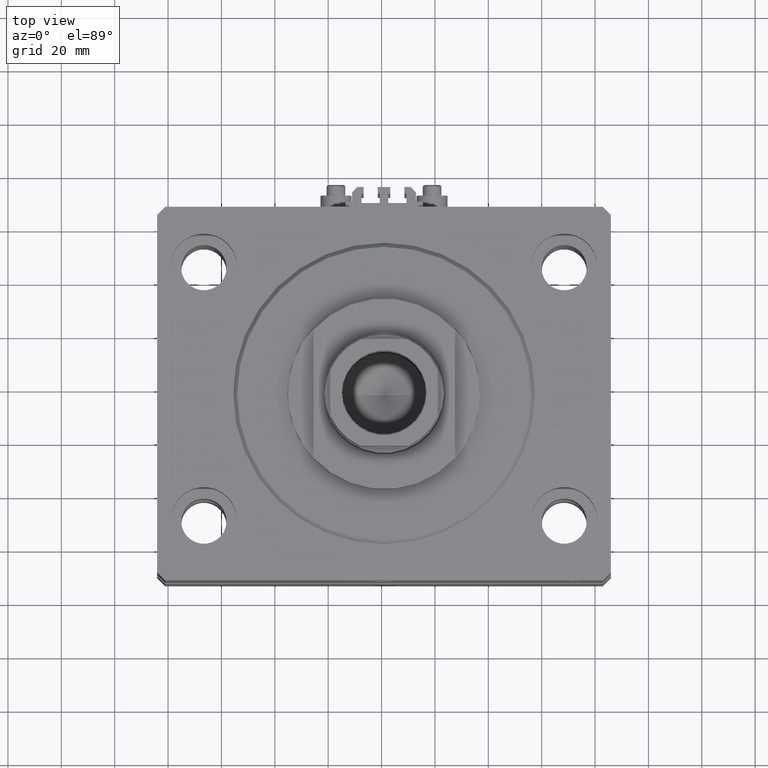
[diagram: clean part render]
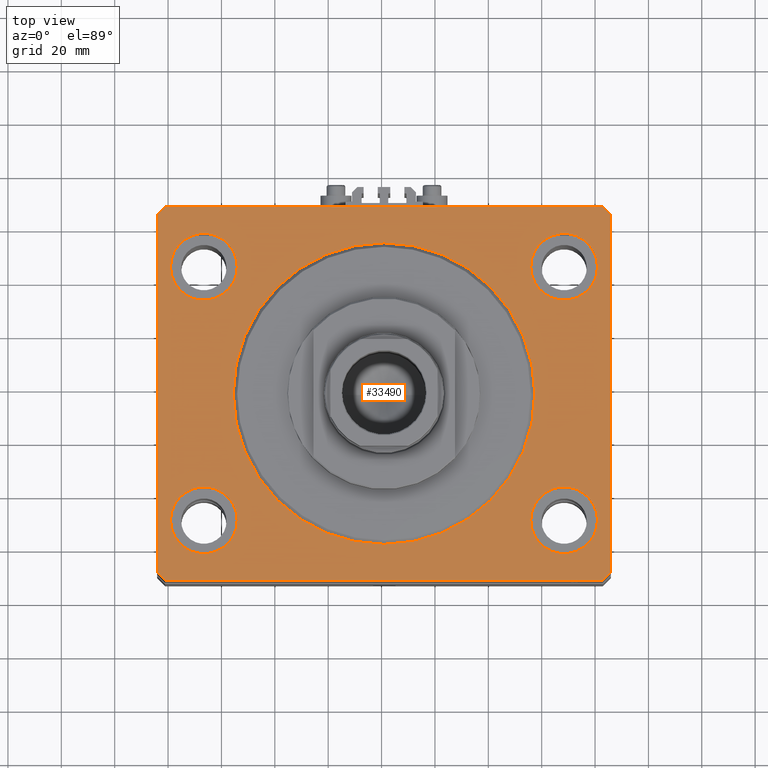
[diagram: same view with one face highlighted and labeled with its STEP entity id]
A machine part, top view. The second image highlights one B-rep face of the part: STEP entity #33490.
In plain terms, the highlighted planar face has unit normal (0, 0, 1).
Its self-contained STEP definition (entity closure, byte-faithful):
#79 = DIRECTION ( 'NONE',  ( 1.000000000000000000, 0.000000000000000000, 0.000000000000000000 ) ) ;
#211 = DIRECTION ( 'NONE',  ( 0.7071067811865459074, 0.7071067811865491270, 0.000000000000000000 ) ) ;
#237 = DIRECTION ( 'NONE',  ( 0.000000000000000000, 0.000000000000000000, 1.000000000000000000 ) ) ;
#923 = AXIS2_PLACEMENT_3D ( 'NONE', #12590, #237, #27661 ) ;
#999 = AXIS2_PLACEMENT_3D ( 'NONE', #36956, #44637, #47872 ) ;
#1818 = DIRECTION ( 'NONE',  ( 1.000000000000000000, 0.000000000000000000, 0.000000000000000000 ) ) ;
#2548 = CIRCLE ( 'NONE', #999, 12.49999999999999645 ) ;
#2725 = CIRCLE ( 'NONE', #20113, 12.49999999999999645 ) ;
#2758 = CIRCLE ( 'NONE', #15418, 12.49999999999999645 ) ;
#2962 = CIRCLE ( 'NONE', #6104, 12.49999999999999645 ) ;
#3541 = ORIENTED_EDGE ( 'NONE', *, *, #45721, .T. ) ;
#3753 = LINE ( 'NONE', #11445, #40136 ) ;
#4842 = CARTESIAN_POINT ( 'NONE',  ( -55.00000000000000711, -47.50000000000000000, 0.000000000000000000 ) ) ;
#4941 = EDGE_CURVE ( 'NONE', #26742, #23318, #38807, .T. ) ;
#5343 = VECTOR ( 'NONE', #48174, 1000.000000000000000 ) ;
#5590 = ORIENTED_EDGE ( 'NONE', *, *, #6964, .F. ) ;
#5617 = CARTESIAN_POINT ( 'NONE',  ( 67.50000000000000000, 47.50000000000001421, 0.000000000000000000 ) ) ;
#6044 = CARTESIAN_POINT ( 'NONE',  ( -82.00000000000000000, 70.00000000000000000, 0.000000000000000000 ) ) ;
#6088 = DIRECTION ( 'NONE',  ( 3.935492064902608811E-15, 1.000000000000000000, 0.000000000000000000 ) ) ;
#6104 = AXIS2_PLACEMENT_3D ( 'NONE', #26152, #18747, #36525 ) ;
#6112 = CARTESIAN_POINT ( 'NONE',  ( 82.00000000000001421, -70.00000000000000000, 0.000000000000000000 ) ) ;
#6702 = EDGE_LOOP ( 'NONE', ( #48087, #46624 ) ) ;
#6726 = EDGE_CURVE ( 'NONE', #35325, #8647, #12072, .T. ) ;
#6964 = EDGE_CURVE ( 'NONE', #27202, #34143, #2548, .T. ) ;
#7031 = CARTESIAN_POINT ( 'NONE',  ( 56.50000000000000711, 0.000000000000000000, 0.000000000000000000 ) ) ;
#8515 = DIRECTION ( 'NONE',  ( 0.000000000000000000, 0.000000000000000000, 1.000000000000000000 ) ) ;
#8567 = DIRECTION ( 'NONE',  ( 1.000000000000000000, 0.000000000000000000, 0.000000000000000000 ) ) ;
#8647 = VERTEX_POINT ( 'NONE', #12804 ) ;
#8906 = VERTEX_POINT ( 'NONE', #7031 ) ;
#9307 = ORIENTED_EDGE ( 'NONE', *, *, #39899, .T. ) ;
#9598 = LINE ( 'NONE', #24673, #10862 ) ;
#9674 = VERTEX_POINT ( 'NONE', #12756 ) ;
#9766 = DIRECTION ( 'NONE',  ( -0.7071067811865474617, -0.7071067811865474617, 0.000000000000000000 ) ) ;
#9791 = ORIENTED_EDGE ( 'NONE', *, *, #21216, .T. ) ;
#10044 = ORIENTED_EDGE ( 'NONE', *, *, #22298, .F. ) ;
#10139 = CIRCLE ( 'NONE', #41766, 12.49999999999999645 ) ;
#10301 = CARTESIAN_POINT ( 'NONE',  ( 85.00000000000001421, -66.99999999999998579, 0.000000000000000000 ) ) ;
#10711 = DIRECTION ( 'NONE',  ( -0.7071067811865344721, 0.7071067811865606734, 0.000000000000000000 ) ) ;
#10830 = EDGE_CURVE ( 'NONE', #38622, #35098, #2725, .T. ) ;
#10862 = VECTOR ( 'NONE', #25902, 1000.000000000000000 ) ;
#10953 = DIRECTION ( 'NONE',  ( 0.000000000000000000, 0.000000000000000000, 1.000000000000000000 ) ) ;
#11445 = CARTESIAN_POINT ( 'NONE',  ( 85.00000000000055422, 66.99999999999997158, 0.000000000000000000 ) ) ;
#11641 = CARTESIAN_POINT ( 'NONE',  ( 82.00000000000059686, 70.00000000000002842, 0.000000000000000000 ) ) ;
#12072 = CIRCLE ( 'NONE', #36497, 12.49999999999999645 ) ;
#12313 = EDGE_CURVE ( 'NONE', #35098, #38622, #2758, .T. ) ;
#12480 = CIRCLE ( 'NONE', #20381, 12.49999999999999645 ) ;
#12590 = CARTESIAN_POINT ( 'NONE',  ( -67.50000000000000000, -47.50000000000000000, 0.000000000000000000 ) ) ;
#12756 = CARTESIAN_POINT ( 'NONE',  ( -82.00000000000001421, -70.00000000000000000, 0.000000000000000000 ) ) ;
#12804 = CARTESIAN_POINT ( 'NONE',  ( 80.00000000000000000, -47.50000000000000000, 0.000000000000000000 ) ) ;
#13208 = DIRECTION ( 'NONE',  ( 0.000000000000000000, 0.000000000000000000, 1.000000000000000000 ) ) ;
#13822 = ORIENTED_EDGE ( 'NONE', *, *, #31292, .T. ) ;
#14173 = EDGE_LOOP ( 'NONE', ( #30083, #46374 ) ) ;
#14435 = EDGE_LOOP ( 'NONE', ( #48910, #10044 ) ) ;
#14973 = CARTESIAN_POINT ( 'NONE',  ( -85.00000000000000000, 67.00000000000000000, 0.000000000000000000 ) ) ;
#15017 = CARTESIAN_POINT ( 'NONE',  ( 67.50000000000000000, -47.50000000000000000, 0.000000000000000000 ) ) ;
#15418 = AXIS2_PLACEMENT_3D ( 'NONE', #5617, #39010, #27404 ) ;
#15422 = CARTESIAN_POINT ( 'NONE',  ( 67.50000000000000000, 47.50000000000001421, 0.000000000000000000 ) ) ;
#16179 = FACE_BOUND ( 'NONE', #14173, .T. ) ;
#16239 = VERTEX_POINT ( 'NONE', #32284 ) ;
#16681 = VERTEX_POINT ( 'NONE', #44332 ) ;
#16913 = FACE_BOUND ( 'NONE', #22591, .T. ) ;
#17253 = CARTESIAN_POINT ( 'NONE',  ( -67.50000000000000000, -47.50000000000000000, 0.000000000000000000 ) ) ;
#17685 = LINE ( 'NONE', #25575, #19831 ) ;
#17861 = ORIENTED_EDGE ( 'NONE', *, *, #10830, .F. ) ;
#18089 = CARTESIAN_POINT ( 'NONE',  ( -85.00000000000001421, -67.00000000000000000, 0.000000000000000000 ) ) ;
#18210 = VERTEX_POINT ( 'NONE', #11641 ) ;
#18747 = DIRECTION ( 'NONE',  ( 0.000000000000000000, 0.000000000000000000, 1.000000000000000000 ) ) ;
#19275 = AXIS2_PLACEMENT_3D ( 'NONE', #19705, #26874, #8567 ) ;
#19705 = CARTESIAN_POINT ( 'NONE',  ( 0.000000000000000000, 0.000000000000000000, 0.000000000000000000 ) ) ;
#19831 = VECTOR ( 'NONE', #22115, 1000.000000000000000 ) ;
#20113 = AXIS2_PLACEMENT_3D ( 'NONE', #15422, #30510, #79 ) ;
#20381 = AXIS2_PLACEMENT_3D ( 'NONE', #17253, #32573, #43459 ) ;
#21216 = EDGE_CURVE ( 'NONE', #18210, #34786, #9598, .T. ) ;
#21242 = EDGE_CURVE ( 'NONE', #8647, #35325, #2962, .T. ) ;
#21302 = CIRCLE ( 'NONE', #48196, 56.50000000000000711 ) ;
#21643 = ORIENTED_EDGE ( 'NONE', *, *, #44537, .T. ) ;
#21696 = LINE ( 'NONE', #40487, #5343 ) ;
#22115 = DIRECTION ( 'NONE',  ( -1.035655806553317576E-16, -1.000000000000000000, 0.000000000000000000 ) ) ;
#22298 = EDGE_CURVE ( 'NONE', #23318, #26742, #12480, .T. ) ;
#22591 = EDGE_LOOP ( 'NONE', ( #17861, #27862 ) ) ;
#23318 = VERTEX_POINT ( 'NONE', #42927 ) ;
#23704 = CARTESIAN_POINT ( 'NONE',  ( -55.00000000000000711, 47.50000000000000000, 0.000000000000000000 ) ) ;
#23830 = CARTESIAN_POINT ( 'NONE',  ( 0.000000000000000000, 0.000000000000000000, 0.000000000000000000 ) ) ;
#23858 = EDGE_CURVE ( 'NONE', #26102, #18210, #3753, .T. ) ;
#23874 = EDGE_CURVE ( 'NONE', #34143, #27202, #10139, .T. ) ;
#23956 = CARTESIAN_POINT ( 'NONE',  ( -80.00000000000000000, 47.50000000000000000, 0.000000000000000000 ) ) ;
#23981 = VECTOR ( 'NONE', #211, 1000.000000000000000 ) ;
#24147 = CARTESIAN_POINT ( 'NONE',  ( 55.00000000000000711, -47.50000000000000000, 0.000000000000000000 ) ) ;
#24673 = CARTESIAN_POINT ( 'NONE',  ( 82.00000000000059686, 70.00000000000002842, 0.000000000000000000 ) ) ;
#24951 = EDGE_LOOP ( 'NONE', ( #9791, #13822, #9307, #21643, #39956, #35705, #3541, #32786 ) ) ;
#25575 = CARTESIAN_POINT ( 'NONE',  ( -85.00000000000000000, 67.00000000000000000, 0.000000000000000000 ) ) ;
#25902 = DIRECTION ( 'NONE',  ( -1.000000000000000000, -1.692413147294439807E-16, 0.000000000000000000 ) ) ;
#26102 = VERTEX_POINT ( 'NONE', #39813 ) ;
#26152 = CARTESIAN_POINT ( 'NONE',  ( 67.50000000000000000, -47.50000000000000000, 0.000000000000000000 ) ) ;
#26520 = CARTESIAN_POINT ( 'NONE',  ( -67.50000000000000000, 47.50000000000000000, 0.000000000000000000 ) ) ;
#26742 = VERTEX_POINT ( 'NONE', #4842 ) ;
#26874 = DIRECTION ( 'NONE',  ( 0.000000000000000000, 0.000000000000000000, 1.000000000000000000 ) ) ;
#26910 = LINE ( 'NONE', #30635, #23981 ) ;
#27202 = VERTEX_POINT ( 'NONE', #23704 ) ;
#27404 = DIRECTION ( 'NONE',  ( 1.000000000000000000, 0.000000000000000000, 0.000000000000000000 ) ) ;
#27549 = FACE_OUTER_BOUND ( 'NONE', #24951, .T. ) ;
#27661 = DIRECTION ( 'NONE',  ( 1.000000000000000000, 0.000000000000000000, 0.000000000000000000 ) ) ;
#27862 = ORIENTED_EDGE ( 'NONE', *, *, #12313, .F. ) ;
#28662 = CARTESIAN_POINT ( 'NONE',  ( 55.00000000000000711, 47.50000000000001421, 0.000000000000000000 ) ) ;
#29968 = EDGE_CURVE ( 'NONE', #9674, #37968, #21696, .T. ) ;
#30083 = ORIENTED_EDGE ( 'NONE', *, *, #21242, .F. ) ;
#30293 = VECTOR ( 'NONE', #6088, 1000.000000000000000 ) ;
#30510 = DIRECTION ( 'NONE',  ( 0.000000000000000000, 0.000000000000000000, 1.000000000000000000 ) ) ;
#30635 = CARTESIAN_POINT ( 'NONE',  ( 82.00000000000001421, -70.00000000000000000, 0.000000000000000000 ) ) ;
#30830 = DIRECTION ( 'NONE',  ( 0.000000000000000000, 0.000000000000000000, 1.000000000000000000 ) ) ;
#30904 = VERTEX_POINT ( 'NONE', #38761 ) ;
#31292 = EDGE_CURVE ( 'NONE', #34786, #33415, #47363, .T. ) ;
#31699 = CARTESIAN_POINT ( 'NONE',  ( -82.00000000000000000, 70.00000000000000000, 0.000000000000000000 ) ) ;
#31987 = CARTESIAN_POINT ( 'NONE',  ( 80.00000000000000000, 47.50000000000001421, 0.000000000000000000 ) ) ;
#31998 = CARTESIAN_POINT ( 'NONE',  ( 0.000000000000000000, 0.000000000000000000, 0.000000000000000000 ) ) ;
#32284 = CARTESIAN_POINT ( 'NONE',  ( -85.00000000000001421, -67.00000000000000000, 0.000000000000000000 ) ) ;
#32573 = DIRECTION ( 'NONE',  ( 0.000000000000000000, 0.000000000000000000, 1.000000000000000000 ) ) ;
#32786 = ORIENTED_EDGE ( 'NONE', *, *, #23858, .T. ) ;
#33160 = DIRECTION ( 'NONE',  ( 0.7071067811865474617, -0.7071067811865474617, 0.000000000000000000 ) ) ;
#33173 = AXIS2_PLACEMENT_3D ( 'NONE', #31998, #13208, #42636 ) ;
#33415 = VERTEX_POINT ( 'NONE', #14973 ) ;
#33479 = EDGE_CURVE ( 'NONE', #8906, #16681, #21302, .T. ) ;
#33490 = ADVANCED_FACE ( 'NONE', ( #38917, #16179, #16913, #38672, #46594, #27549 ), #39406, .T. ) ;
#33669 = EDGE_LOOP ( 'NONE', ( #5590, #34986 ) ) ;
#33891 = LINE ( 'NONE', #18089, #48433 ) ;
#34143 = VERTEX_POINT ( 'NONE', #23956 ) ;
#34786 = VERTEX_POINT ( 'NONE', #31699 ) ;
#34986 = ORIENTED_EDGE ( 'NONE', *, *, #23874, .F. ) ;
#35098 = VERTEX_POINT ( 'NONE', #28662 ) ;
#35325 = VERTEX_POINT ( 'NONE', #24147 ) ;
#35705 = ORIENTED_EDGE ( 'NONE', *, *, #46471, .T. ) ;
#36497 = AXIS2_PLACEMENT_3D ( 'NONE', #15017, #30830, #45914 ) ;
#36525 = DIRECTION ( 'NONE',  ( 1.000000000000000000, 0.000000000000000000, 0.000000000000000000 ) ) ;
#36956 = CARTESIAN_POINT ( 'NONE',  ( -67.50000000000000000, 47.50000000000000000, 0.000000000000000000 ) ) ;
#37968 = VERTEX_POINT ( 'NONE', #6112 ) ;
#38622 = VERTEX_POINT ( 'NONE', #31987 ) ;
#38672 = FACE_BOUND ( 'NONE', #33669, .T. ) ;
#38761 = CARTESIAN_POINT ( 'NONE',  ( 85.00000000000001421, -66.99999999999998579, 0.000000000000000000 ) ) ;
#38807 = CIRCLE ( 'NONE', #923, 12.49999999999999645 ) ;
#38917 = FACE_BOUND ( 'NONE', #14435, .T. ) ;
#39010 = DIRECTION ( 'NONE',  ( 0.000000000000000000, 0.000000000000000000, 1.000000000000000000 ) ) ;
#39406 = PLANE ( 'NONE',  #33173 ) ;
#39792 = CIRCLE ( 'NONE', #19275, 56.50000000000000711 ) ;
#39813 = CARTESIAN_POINT ( 'NONE',  ( 85.00000000000055422, 66.99999999999997158, 0.000000000000000000 ) ) ;
#39899 = EDGE_CURVE ( 'NONE', #33415, #16239, #17685, .T. ) ;
#39956 = ORIENTED_EDGE ( 'NONE', *, *, #29968, .T. ) ;
#39968 = LINE ( 'NONE', #10301, #30293 ) ;
#40136 = VECTOR ( 'NONE', #10711, 1000.000000000000000 ) ;
#40487 = CARTESIAN_POINT ( 'NONE',  ( -82.00000000000001421, -70.00000000000000000, 0.000000000000000000 ) ) ;
#41594 = DIRECTION ( 'NONE',  ( 1.000000000000000000, 0.000000000000000000, 0.000000000000000000 ) ) ;
#41766 = AXIS2_PLACEMENT_3D ( 'NONE', #26520, #10953, #41594 ) ;
#42636 = DIRECTION ( 'NONE',  ( 1.000000000000000000, 0.000000000000000000, -0.000000000000000000 ) ) ;
#42927 = CARTESIAN_POINT ( 'NONE',  ( -80.00000000000000000, -47.50000000000000000, 0.000000000000000000 ) ) ;
#43459 = DIRECTION ( 'NONE',  ( 1.000000000000000000, 0.000000000000000000, 0.000000000000000000 ) ) ;
#44332 = CARTESIAN_POINT ( 'NONE',  ( -56.50000000000000711, 6.919254415182546126E-15, 0.000000000000000000 ) ) ;
#44537 = EDGE_CURVE ( 'NONE', #16239, #9674, #33891, .T. ) ;
#44637 = DIRECTION ( 'NONE',  ( 0.000000000000000000, 0.000000000000000000, 1.000000000000000000 ) ) ;
#45721 = EDGE_CURVE ( 'NONE', #30904, #26102, #39968, .T. ) ;
#45723 = VECTOR ( 'NONE', #9766, 1000.000000000000114 ) ;
#45914 = DIRECTION ( 'NONE',  ( 1.000000000000000000, 0.000000000000000000, 0.000000000000000000 ) ) ;
#46374 = ORIENTED_EDGE ( 'NONE', *, *, #6726, .F. ) ;
#46471 = EDGE_CURVE ( 'NONE', #37968, #30904, #26910, .T. ) ;
#46594 = FACE_BOUND ( 'NONE', #6702, .T. ) ;
#46624 = ORIENTED_EDGE ( 'NONE', *, *, #47054, .F. ) ;
#47054 = EDGE_CURVE ( 'NONE', #16681, #8906, #39792, .T. ) ;
#47363 = LINE ( 'NONE', #6044, #45723 ) ;
#47872 = DIRECTION ( 'NONE',  ( 1.000000000000000000, 0.000000000000000000, 0.000000000000000000 ) ) ;
#48087 = ORIENTED_EDGE ( 'NONE', *, *, #33479, .F. ) ;
#48174 = DIRECTION ( 'NONE',  ( 1.000000000000000000, 0.000000000000000000, 0.000000000000000000 ) ) ;
#48196 = AXIS2_PLACEMENT_3D ( 'NONE', #23830, #8515, #1818 ) ;
#48433 = VECTOR ( 'NONE', #33160, 1000.000000000000114 ) ;
#48910 = ORIENTED_EDGE ( 'NONE', *, *, #4941, .F. ) ;